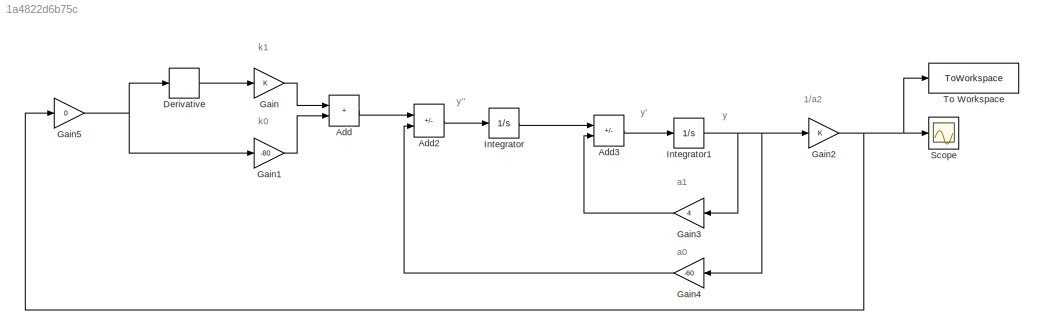
MODEL slx_1a4822d6b75c
KIND model
CONFIG AbsTol = auto
CONFIG EnableMultiTasking = off
CONFIG FixedStep = 0.001
CONFIG MaxStep = auto
CONFIG MinStep = auto
CONFIG RelTol = 1e-3
CONFIG SampleTimeConstraint = Unconstrained
CONFIG SolverName = FixedStepAuto
CONFIG StartTime = 0.0
CONFIG StopTime = 1
BLOCK [Sum] Add
  IconShape = rectangular
BLOCK [Sum] Add2
  IconShape = rectangular
  Inputs = +-
BLOCK [Sum] Add3
  IconShape = rectangular
  Inputs = +-
BLOCK [Derivative] Derivative
BLOCK [Gain] Gain
BLOCK [Gain] Gain1
  Gain = -80
BLOCK [Gain] Gain2
BLOCK [Gain] Gain3
  Gain = 4
  NameLocation = top
BLOCK [Gain] Gain4
  Gain = -60
  NameLocation = top
BLOCK [Gain] Gain5
  Gain = 0
BLOCK [Integrator] Integrator
  InitialCondition = 5
BLOCK [Integrator] Integrator1
  InitialCondition = 5
BLOCK [Scope] Scope
  Floating = off
  NumInputPorts = 1
  ScopeSpecificationString = Simulink.scopes.TimeScopeBlockCfg('CurrentConfiguration', extmgr.ConfigurationSet(extmgr.Configuration('Core','General UI',true),extmgr.Configuration('Core','Source UI',true),extmgr.Configuration('Sources','WiredSimulink',true),extmgr.Configuration('Visuals','Time Domain',true,'SerializedDisplays',{struct('MinYLimReal','-105.07241','MaxYLimReal','992.2309','YLabelReal','','MinYLimMag',' 0.00000','...<+1335ch>
BLOCK [ToWorkspace] To Workspace
  FixptAsFi = on
  MaxDataPoints = inf
  SampleTime = -1
  SaveFormat = Timeseries
  VariableName = simout
ANNOTATION (root): 1/a2
ANNOTATION (root): a0
ANNOTATION (root): a1
ANNOTATION (root): k0
ANNOTATION (root): k1
ANNOTATION (root): y
ANNOTATION (root): y'
ANNOTATION (root): y''
LINE Add2:1 -> Integrator:1
LINE Add3:1 -> Integrator1:1
LINE Add:1 -> Add2:1
LINE Derivative:1 -> Gain:1
LINE Gain1:1 -> Add:2
NET Gain2:1 -> Gain5:1, Scope:1, To Workspace:1
LINE Gain3:1 -> Add3:2
LINE Gain4:1 -> Add2:2
NET Gain5:1 -> Derivative:1, Gain1:1
LINE Gain:1 -> Add:1
NET Integrator1:1 -> Gain2:1, Gain3:1, Gain4:1
LINE Integrator:1 -> Add3:1
note: NET lines group one-source signal fan-out (src -> all destinations, sorted); 1:1 wires keep LINE
